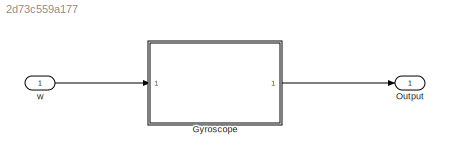
MODEL slx_2d73c559a177
KIND model
CONFIG AbsTol = auto
CONFIG EnableMultiTasking = off
CONFIG FixedStep = auto
CONFIG MaxStep = auto
CONFIG MinStep = auto
CONFIG RelTol = 1e-3
CONFIG SampleTimeConstraint = Unconstrained
CONFIG SolverName = VariableStepAuto
CONFIG StartTime = 0.0
CONFIG StopTime = 10.0
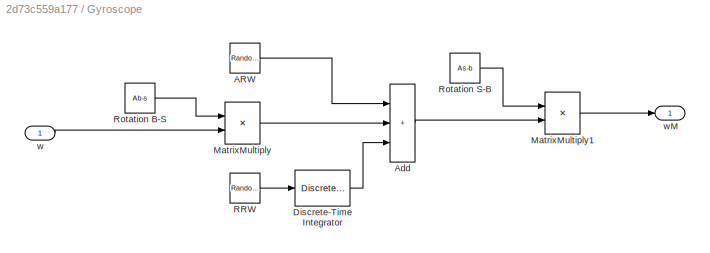
BLOCK [SubSystem] Gyroscope
BLOCK [RandomNumber] Gyroscope/ARW
  SampleTime = Ts
  Seed = 12984537
  Variance = StdDevARW
  VectorParams1D = off
BLOCK [Sum] Gyroscope/Add
  IconShape = rectangular
  Inputs = +++
BLOCK [DiscreteIntegrator] Gyroscope/Discrete-Time Integrator
  ICPrevOutput = DiscIntNeverNeededParam
  ICPrevScaledInput = DiscIntNeverNeededParam
  InitialConditionSetting = Auto
  IntegratorMethod = Integration: Trapezoidal
  SampleTime = Ts
BLOCK [Product] Gyroscope/MatrixMultiply
  Multiplication = Matrix(*)
BLOCK [Product] Gyroscope/MatrixMultiply1
  Multiplication = Matrix(*)
BLOCK [RandomNumber] Gyroscope/RRW
  SampleTime = Ts
  Seed = 34654365
  Variance = BiasStability
  VectorParams1D = off
BLOCK [Constant] Gyroscope/Rotation B-S
  Value = Ab-s
BLOCK [Constant] Gyroscope/Rotation S-B
  Value = As-b
BLOCK [Inport] Gyroscope/w
BLOCK [Outport] Gyroscope/wM
BLOCK [Outport] Output
BLOCK [Inport] w
LINE Gyroscope/ARW:1 -> Gyroscope/Add:1
LINE Gyroscope/Add:1 -> Gyroscope/MatrixMultiply1:2
LINE Gyroscope/Discrete-Time Integrator:1 -> Gyroscope/Add:3
LINE Gyroscope/MatrixMultiply1:1 -> Gyroscope/wM:1
LINE Gyroscope/MatrixMultiply:1 -> Gyroscope/Add:2
LINE Gyroscope/RRW:1 -> Gyroscope/Discrete-Time Integrator:1
LINE Gyroscope/Rotation B-S:1 -> Gyroscope/MatrixMultiply:1
LINE Gyroscope/Rotation S-B:1 -> Gyroscope/MatrixMultiply1:1
LINE Gyroscope/w:1 -> Gyroscope/MatrixMultiply:2
LINE Gyroscope:1 -> Output:1
LINE w:1 -> Gyroscope:1
